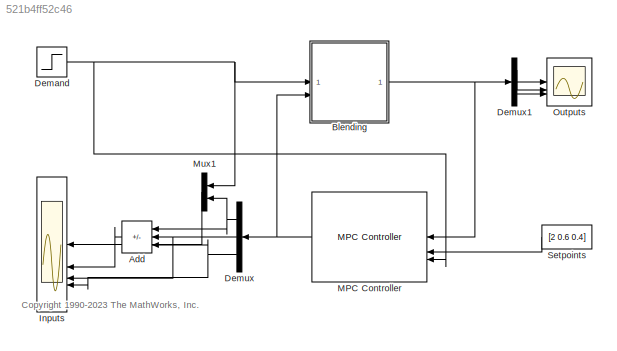
MODEL slx_521b4ff52c46
KIND model
CONFIG AbsTol = auto
CONFIG EnableMultiTasking = on
CONFIG FixedStep = auto
CONFIG MaxStep = auto
CONFIG MinStep = auto
CONFIG RelTol = 1e-3
CONFIG SampleTimeConstraint = Unconstrained
CONFIG SolverName = ode45
CONFIG StartTime = 0.0
CONFIG StopTime = 16
BLOCK [Sum] Add
  IconShape = rectangular
  Inputs = +--
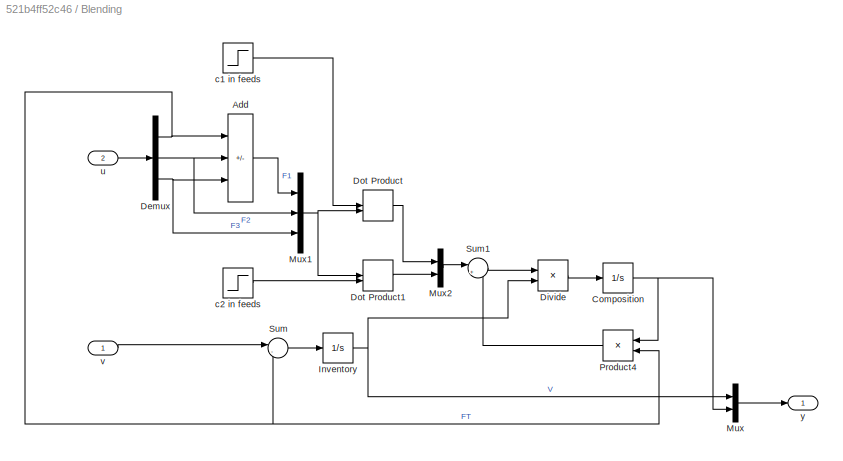
BLOCK [SubSystem] Blending
BLOCK [Sum] Blending/Add
  IconShape = rectangular
  Inputs = +--
BLOCK [Integrator] Blending/Composition
  InitialCondition = [0.6 0.4]
  LimitOutput = on
  LowerSaturationLimit = 0
BLOCK [Demux] Blending/Demux
  Outputs = 3
BLOCK [Product] Blending/Divide
  Inputs = */
BLOCK [DotProduct] Blending/Dot Product
  OutDataTypeStr = Inherit: Inherit via internal rule
BLOCK [DotProduct] Blending/Dot Product1
  OutDataTypeStr = Inherit: Inherit via internal rule
BLOCK [Integrator] Blending/Inventory
  InitialCondition = 2
  LimitOutput = on
  LowerSaturationLimit = 1e-5
BLOCK [Mux] Blending/Mux
  DisplayOption = bar
  Inputs = 2
BLOCK [Mux] Blending/Mux1
  DisplayOption = bar
  Inputs = 3
BLOCK [Mux] Blending/Mux2
  DisplayOption = bar
  Inputs = 2
BLOCK [Product] Blending/Product4
  RndMeth = Zero
BLOCK [Sum] Blending/Sum
  Inputs = |-+
BLOCK [Sum] Blending/Sum1
  Inputs = |+-
BLOCK [Step] Blending/c1 in feeds
  After = [0.6 0.2 0.4]
  Before = [0.7 0.2 0.5]
  SampleTime = 0
  Time = 2
BLOCK [Step] Blending/c2 in feeds
  After = [0.4 0.8 0.4]
  Before = [0.3 0.8 0.4]
  SampleTime = 0
  Time = 2
BLOCK [Inport] Blending/u
  Port = 2
BLOCK [Inport] Blending/v
BLOCK [Outport] Blending/y
BLOCK [Step] Demand
  After = 1.8
  Before = 2
  SampleTime = 0
BLOCK [Demux] Demux
  Outputs = 3
BLOCK [Demux] Demux1
  Outputs = 3
BLOCK [Scope] Inputs
  Floating = off
  NumInputPorts = 4
  ScopeSpecificationString = Simulink.scopes.TimeScopeBlockCfg('CurrentConfiguration', extmgr.ConfigurationSet(extmgr.Configuration('Core','General UI',true),extmgr.Configuration('Core','Source UI',true),extmgr.Configuration('Sources','WiredSimulink',true,'DataLogging',true,'DataLoggingVariableName','MVs','DataLoggingSaveFormat','StructureWithTime','DataLoggingDecimation','1','DataLoggingDecimateData',true),extmgr.Configurati...<+3736ch>
BLOCK [Reference] MPC Controller  REF=mpclib/MPC Controller  (lib defined in mdl_ae329e0e0455)
  SourceBlock = mpclib/MPC Controller
  SourceType = MPC
BLOCK [Mux] Mux1
  DisplayOption = bar
  Inputs = 2
BLOCK [Scope] Outputs
  Floating = off
  NumInputPorts = 3
  ScopeSpecificationString = Simulink.scopes.TimeScopeBlockCfg('CurrentConfiguration', extmgr.ConfigurationSet(extmgr.Configuration('Core','General UI',true),extmgr.Configuration('Core','Source UI',true),extmgr.Configuration('Sources','WiredSimulink',true,'DataLoggingSaveFormat','StructureWithTime','DataLoggingDecimation','1','DataLoggingDecimateData',true),extmgr.Configuration('Visuals','Time Domain',true,'SerializedDisplays...<+2936ch>
BLOCK [Constant] Setpoints
  Value = [2 0.6 0.4]
ANNOTATION (root): <copyright redacted>
LINE Add:1 -> Inputs:2
LINE Blending/Add:1 -> Blending/Mux1:1
NET Blending/Composition:1 -> Blending/Mux:2, Blending/Product4:1
NET Blending/Demux:1 -> Blending/Add:1, Blending/Product4:2, Blending/Sum:2
NET Blending/Demux:2 -> Blending/Add:2, Blending/Mux1:2
NET Blending/Demux:3 -> Blending/Add:3, Blending/Mux1:3
LINE Blending/Divide:1 -> Blending/Composition:1
LINE Blending/Dot Product1:1 -> Blending/Mux2:2
LINE Blending/Dot Product:1 -> Blending/Mux2:1
NET Blending/Inventory:1 -> Blending/Divide:2, Blending/Mux:1
NET Blending/Mux1:1 -> Blending/Dot Product1:1, Blending/Dot Product:2
LINE Blending/Mux2:1 -> Blending/Sum1:1
LINE Blending/Mux:1 -> Blending/y:1
LINE Blending/Product4:1 -> Blending/Sum1:2
LINE Blending/Sum1:1 -> Blending/Divide:1
LINE Blending/Sum:1 -> Blending/Inventory:1
LINE Blending/c1 in feeds:1 -> Blending/Dot Product:1
LINE Blending/c2 in feeds:1 -> Blending/Dot Product1:2
LINE Blending/u:1 -> Blending/Demux:1
LINE Blending/v:1 -> Blending/Sum:1
NET Blending:1 -> Demux1:1, MPC Controller:1
NET Demand:1 -> Blending:1, MPC Controller:3, Mux1:1
LINE Demux1:1 -> Outputs:1
LINE Demux1:2 -> Outputs:2
LINE Demux1:3 -> Outputs:3
NET Demux:1 -> Add:1, Mux1:2
NET Demux:2 -> Add:2, Inputs:3
NET Demux:3 -> Add:3, Inputs:4
NET MPC Controller:1 -> Blending:2, Demux:1
LINE Mux1:1 -> Inputs:1
LINE Setpoints:1 -> MPC Controller:2
note: NET lines group one-source signal fan-out (src -> all destinations, sorted); 1:1 wires keep LINE
